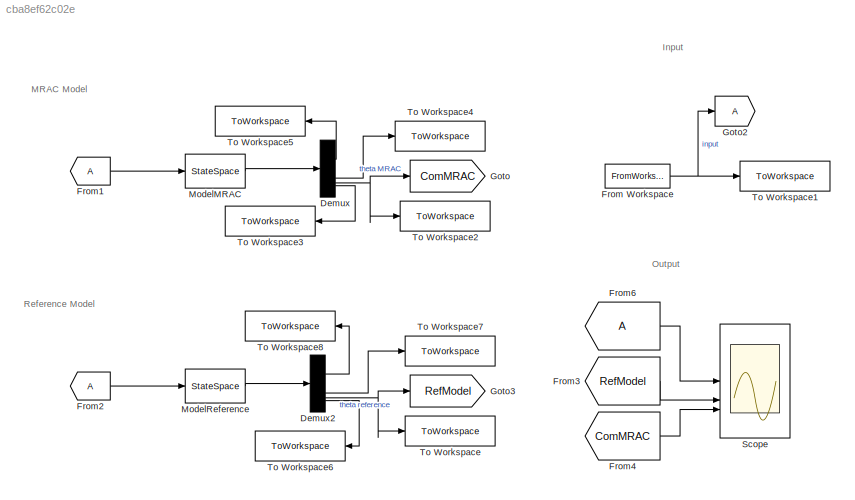
MODEL slx_cba8ef62c02e
KIND model
CONFIG AbsTol = auto
CONFIG EnableMultiTasking = off
CONFIG FixedStep = auto
CONFIG MaxStep = auto
CONFIG MinStep = auto
CONFIG RelTol = 1e-3
CONFIG SampleTimeConstraint = Unconstrained
CONFIG SolverName = VariableStepAuto
CONFIG StartTime = 0.0
CONFIG StopTime = 60
BLOCK [Demux] Demux
BLOCK [Demux] Demux2
BLOCK [FromWorkspace] From Workspace
  SampleTime = Ts
  VariableName = simInput
BLOCK [From] From1
BLOCK [From] From2
BLOCK [From] From3
  GotoTag = RefModel
BLOCK [From] From4
  GotoTag = ComMRAC
BLOCK [From] From6
BLOCK [Goto] Goto
  GotoTag = ComMRAC
BLOCK [Goto] Goto2
BLOCK [Goto] Goto3
  GotoTag = RefModel
BLOCK [StateSpace] ModelMRAC
  A = ModelMRAC.A
  B = ModelMRAC.B
  C = ModelMRAC.C
  D = ModelMRAC.D
  InitialCondition = 0
  ParameterTunability = Unconstrained
BLOCK [StateSpace] ModelReference
  A = ModelReference.A
  B = ModelReference.B
  C = ModelReference.C
  D = ModelReference.D
  InitialCondition = 0
  ParameterTunability = Unconstrained
BLOCK [Scope] Scope
  Floating = off
  NumInputPorts = 3
  ScopeSpecificationString = Simulink.scopes.TimeScopeBlockCfg('CurrentConfiguration', extmgr.ConfigurationSet(extmgr.Configuration('Core','General UI',true),extmgr.Configuration('Core','Source UI',true),extmgr.Configuration('Sources','WiredSimulink',true),extmgr.Configuration('Visuals','Time Domain',true,'SerializedDisplays',{struct('MinYLimReal','-0.14628','MaxYLimReal','1.31652','YLabelReal','','MinYLimMag','0.00000','MaxY...<+1428ch>
BLOCK [ToWorkspace] To Workspace
  FixptAsFi = on
  MaxDataPoints = inf
  SampleTime = -1
  SaveFormat = Timeseries
  VariableName = modelRefTheta
BLOCK [ToWorkspace] To Workspace1
  FixptAsFi = on
  MaxDataPoints = inf
  SampleTime = Ts
  SaveFormat = Timeseries
  VariableName = input
BLOCK [ToWorkspace] To Workspace2
  FixptAsFi = on
  MaxDataPoints = inf
  SampleTime = -1
  SaveFormat = Timeseries
  VariableName = MRACTheta
BLOCK [ToWorkspace] To Workspace3
  FixptAsFi = on
  MaxDataPoints = inf
  NameLocation = top
  SampleTime = -1
  SaveFormat = Timeseries
  VariableName = MRACq
BLOCK [ToWorkspace] To Workspace4
  FixptAsFi = on
  MaxDataPoints = inf
  SampleTime = -1
  SaveFormat = Timeseries
  VariableName = MRACu_z
BLOCK [ToWorkspace] To Workspace5
  FixptAsFi = on
  MaxDataPoints = inf
  NameLocation = top
  SampleTime = -1
  SaveFormat = Timeseries
  VariableName = MRACu_x
BLOCK [ToWorkspace] To Workspace6
  FixptAsFi = on
  MaxDataPoints = inf
  NameLocation = top
  SampleTime = -1
  SaveFormat = Timeseries
  VariableName = modelRefq
BLOCK [ToWorkspace] To Workspace7
  FixptAsFi = on
  MaxDataPoints = inf
  SampleTime = -1
  SaveFormat = Timeseries
  VariableName = modelRefu_z
BLOCK [ToWorkspace] To Workspace8
  FixptAsFi = on
  MaxDataPoints = inf
  NameLocation = top
  SampleTime = -1
  SaveFormat = Timeseries
  VariableName = modelRefu_x
ANNOTATION (root): Input
ANNOTATION (root): Output
ANNOTATION (root): MRAC Model
ANNOTATION (root): Reference Model
LINE Demux2:1 -> To Workspace8:1
LINE Demux2:2 -> To Workspace7:1
NET Demux2:3 -> Goto3:1, To Workspace:1
LINE Demux2:4 -> To Workspace6:1
LINE Demux:1 -> To Workspace5:1
LINE Demux:2 -> To Workspace4:1
NET Demux:3 -> Goto:1, To Workspace2:1
LINE Demux:4 -> To Workspace3:1
NET From Workspace:1 -> Goto2:1, To Workspace1:1
LINE From1:1 -> ModelMRAC:1
LINE From2:1 -> ModelReference:1
LINE From3:1 -> Scope:2
LINE From4:1 -> Scope:3
LINE From6:1 -> Scope:1
LINE ModelMRAC:1 -> Demux:1
LINE ModelReference:1 -> Demux2:1
note: NET lines group one-source signal fan-out (src -> all destinations, sorted); 1:1 wires keep LINE
